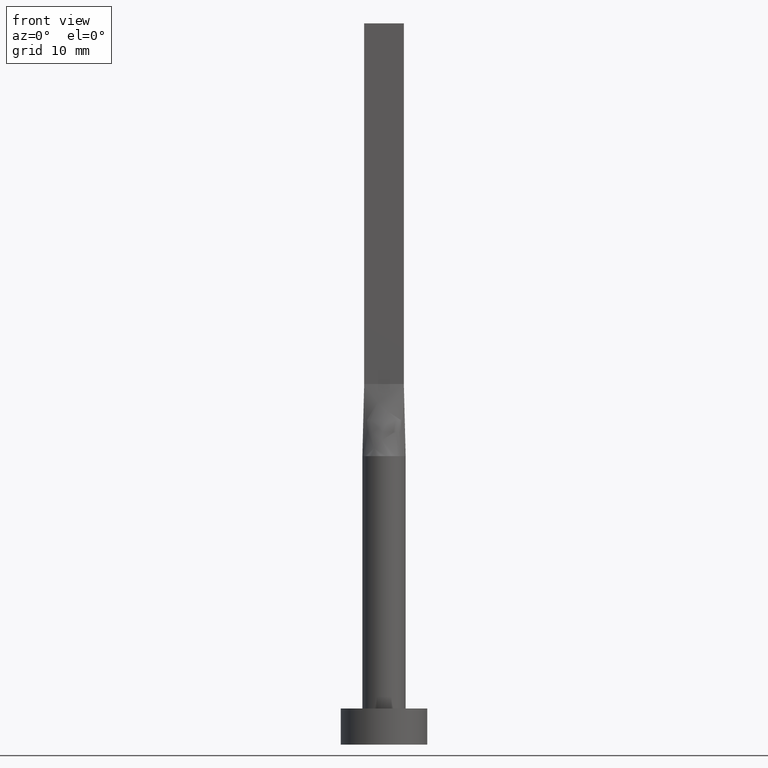
[diagram: clean part render]
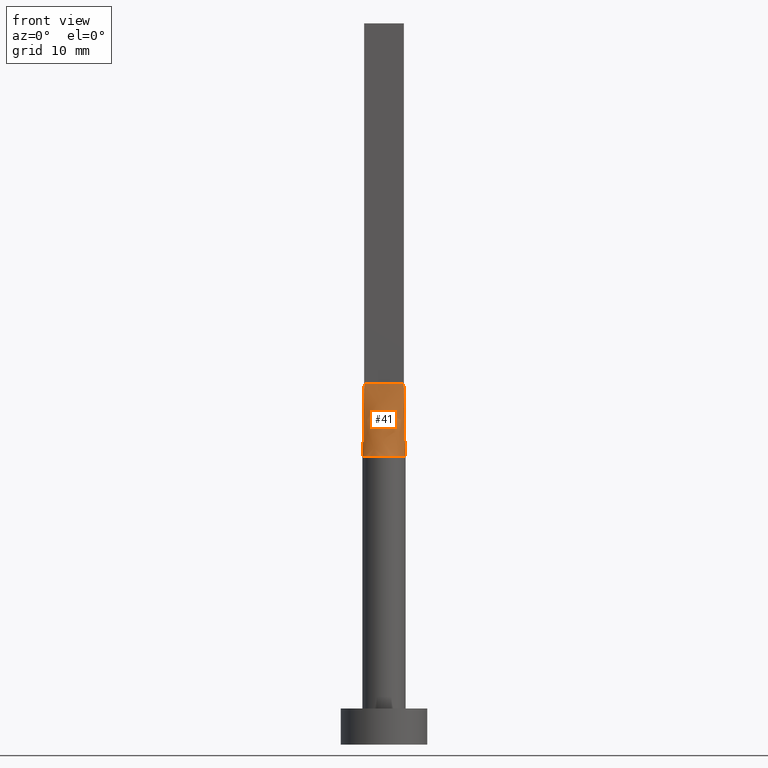
[diagram: same view with one face highlighted and labeled with its STEP entity id]
A machine part, front view. The second image highlights one B-rep face of the part: STEP entity #41.
In plain terms, the highlighted face is a freeform B-spline surface patch.
Its self-contained STEP definition (entity closure, byte-faithful):
#14 = CARTESIAN_POINT ( 'NONE',  ( 0.8041209001220684938, -2.916015559847872751, 40.00000000000000000 ) ) ;
#17 = CARTESIAN_POINT ( 'NONE',  ( 2.291666666666666519, -0.5999999999999996447, 50.00000000000000000 ) ) ;
#20 = CARTESIAN_POINT ( 'NONE',  ( -2.518011668798964653, -1.657305971825550062, 40.00000000000001421 ) ) ;
#24 = CARTESIAN_POINT ( 'NONE',  ( 2.518011668798964209, -1.657305971825550506, 40.00000000000001421 ) ) ;
#27 = CARTESIAN_POINT ( 'NONE',  ( -1.604166666666665408, -0.5999999999999994227, 50.00000000000000000 ) ) ;
#41 = ADVANCED_FACE ( 'NONE', ( #520 ), #570, .T. ) ;
#42 = ORIENTED_EDGE ( 'NONE', *, *, #275, .F. ) ;
#47 = CARTESIAN_POINT ( 'NONE',  ( -2.750000000000000000, -0.5999999999999994227, 50.00000000000000000 ) ) ;
#56 = LINE ( 'NONE', #232, #278 ) ;
#59 = EDGE_CURVE ( 'NONE', #314, #87, #380, .T. ) ;
#62 = CARTESIAN_POINT ( 'NONE',  ( 0.4583333333333337034, -0.5999999999999995337, 50.00000000000000000 ) ) ;
#64 = CIRCLE ( 'NONE', #164, 3.000000000000000444 ) ;
#68 = CARTESIAN_POINT ( 'NONE',  ( 2.931047284229977734, -0.6395012256501753090, 40.00000000000000000 ) ) ;
#79 = DIRECTION ( 'NONE',  ( 1.000000000000000000, 0.000000000000000000, 0.000000000000000000 ) ) ;
#87 = VERTEX_POINT ( 'NONE', #199 ) ;
#102 = EDGE_LOOP ( 'NONE', ( #414, #327, #42, #183 ) ) ;
#110 = CARTESIAN_POINT ( 'NONE',  ( -0.9166666666666656305, -0.5999999999999994227, 50.00000000000000000 ) ) ;
#112 = CARTESIAN_POINT ( 'NONE',  ( -2.291666666666665630, -0.5999999999999994227, 50.00000000000000000 ) ) ;
#119 = LINE ( 'NONE', #530, #510 ) ;
#120 = CARTESIAN_POINT ( 'NONE',  ( 0.000000000000000000, 0.000000000000000000, 40.00000000000000000 ) ) ;
#122 = DIRECTION ( 'NONE',  ( 0.000000000000000000, 0.000000000000000000, 1.000000000000000000 ) ) ;
#149 = CARTESIAN_POINT ( 'NONE',  ( 1.833333333333333481, -0.5999999999999996447, 50.00000000000000000 ) ) ;
#155 = CARTESIAN_POINT ( 'NONE',  ( 2.878980386154875060, -0.8781411751610634919, 40.00000000000000000 ) ) ;
#161 = CARTESIAN_POINT ( 'NONE',  ( 2.750000000000000000, -0.5999999999999997558, 50.00000000000000000 ) ) ;
#162 = VERTEX_POINT ( 'NONE', #447 ) ;
#164 = AXIS2_PLACEMENT_3D ( 'NONE', #120, #122, #79 ) ;
#183 = ORIENTED_EDGE ( 'NONE', *, *, #59, .T. ) ;
#190 = CARTESIAN_POINT ( 'NONE',  ( 0.2291666666666668517, -0.5999999999999995337, 50.00000000000000000 ) ) ;
#195 = DIRECTION ( 'NONE',  ( -0.01810162078030962129, -0.003949444533885649103, -0.9998283518749604415 ) ) ;
#197 = CARTESIAN_POINT ( 'NONE',  ( 1.829136458871248205, -2.402980488111650992, 40.00000000000000711 ) ) ;
#199 = CARTESIAN_POINT ( 'NONE',  ( -2.931315536094174057, -0.6395601373676296220, 40.00000000000000000 ) ) ;
#232 = CARTESIAN_POINT ( 'NONE',  ( 2.840523642114988867, -0.6197506128250874768, 45.00000000000000000 ) ) ;
#237 = CARTESIAN_POINT ( 'NONE',  ( -1.145833333333332149, -0.5999999999999994227, 50.00000000000000000 ) ) ;
#241 = CARTESIAN_POINT ( 'NONE',  ( 0.9166666666666669627, -0.5999999999999996447, 50.00000000000000000 ) ) ;
#244 = CARTESIAN_POINT ( 'NONE',  ( -2.792624347712116428, -1.135030881087314647, 40.00000000000000711 ) ) ;
#248 = CARTESIAN_POINT ( 'NONE',  ( -0.8041209001220698260, -2.916015559847872307, 40.00000000000000000 ) ) ;
#251 = CARTESIAN_POINT ( 'NONE',  ( -2.750000000000000000, -0.5999999999999994227, 50.00000000000000000 ) ) ;
#275 = EDGE_CURVE ( 'NONE', #314, #162, #119, .T. ) ;
#278 = VECTOR ( 'NONE', #509, 1000.000000000000000 ) ;
#286 = CARTESIAN_POINT ( 'NONE',  ( 2.931332910560268790, -0.6395638358681950963, 40.00000000000000000 ) ) ;
#287 = CARTESIAN_POINT ( 'NONE',  ( 2.520833333333333037, -0.5999999999999996447, 50.00000000000000000 ) ) ;
#292 = CARTESIAN_POINT ( 'NONE',  ( -0.4583333333333328152, -0.5999999999999994227, 50.00000000000000000 ) ) ;
#299 = DIRECTION ( 'NONE',  ( 1.000000000000000000, -5.913830031739115543E-17, 0.000000000000000000 ) ) ;
#314 = VERTEX_POINT ( 'NONE', #47 ) ;
#327 = ORIENTED_EDGE ( 'NONE', *, *, #386, .T. ) ;
#329 = CARTESIAN_POINT ( 'NONE',  ( 2.792624347712116872, -1.135030881087315757, 40.00000000000001421 ) ) ;
#331 = CARTESIAN_POINT ( 'NONE',  ( -1.833333333333332149, -0.5999999999999994227, 50.00000000000000000 ) ) ;
#339 = CARTESIAN_POINT ( 'NONE',  ( -0.2291666666666664076, -0.5999999999999995337, 50.00000000000000000 ) ) ;
#375 = CARTESIAN_POINT ( 'NONE',  ( 2.328745122427008152, -1.922758842442226390, 39.99999999999999289 ) ) ;
#380 = LINE ( 'NONE', #561, #412 ) ;
#382 = CARTESIAN_POINT ( 'NONE',  ( -2.328745122427009928, -1.922758842442225058, 39.99999999999997868 ) ) ;
#384 = CARTESIAN_POINT ( 'NONE',  ( 0.4026715616377293805, -3.000000000000001332, 40.00000000000000000 ) ) ;
#386 = EDGE_CURVE ( 'NONE', #495, #162, #56, .T. ) ;
#412 = VECTOR ( 'NONE', #195, 1000.000000000000000 ) ;
#414 = ORIENTED_EDGE ( 'NONE', *, *, #533, .T. ) ;
#420 = CARTESIAN_POINT ( 'NONE',  ( -0.4026715616377306572, -3.000000000000000000, 40.00000000000000000 ) ) ;
#424 = CARTESIAN_POINT ( 'NONE',  ( 1.145833333333333481, -0.5999999999999996447, 50.00000000000000000 ) ) ;
#434 = CARTESIAN_POINT ( 'NONE',  ( -2.878980386154874616, -0.8781411751610622707, 39.99999999999999289 ) ) ;
#447 = CARTESIAN_POINT ( 'NONE',  ( 2.750000000000000000, -0.5999999999999997558, 50.00000000000000000 ) ) ;
#465 = CARTESIAN_POINT ( 'NONE',  ( -2.520833333333333037, -0.5999999999999994227, 50.00000000000000000 ) ) ;
#467 = CARTESIAN_POINT ( 'NONE',  ( -2.931047284229977734, -0.6395012256501755310, 40.00000000000000000 ) ) ;
#495 = VERTEX_POINT ( 'NONE', #286 ) ;
#509 = DIRECTION ( 'NONE',  ( -0.01810162078030962129, 0.003949444533885595326, 0.9998283518749604415 ) ) ;
#510 = VECTOR ( 'NONE', #299, 1000.000000000000000 ) ;
#520 = FACE_OUTER_BOUND ( 'NONE', #102, .T. ) ;
#526 = CARTESIAN_POINT ( 'NONE',  ( -1.829136458871248427, -2.402980488111649660, 39.99999999999997158 ) ) ;
#530 = CARTESIAN_POINT ( 'NONE',  ( -2.750000000000000000, -0.5999999999999994227, 50.00000000000000000 ) ) ;
#533 = EDGE_CURVE ( 'NONE', #87, #495, #64, .T. ) ;
#557 = CARTESIAN_POINT ( 'NONE',  ( 1.604166666666666741, -0.5999999999999996447, 50.00000000000000000 ) ) ;
#559 = CARTESIAN_POINT ( 'NONE',  ( -1.517787371616672321, -2.616501225271827380, 39.99999999999998579 ) ) ;
#561 = CARTESIAN_POINT ( 'NONE',  ( -2.840523642114988867, -0.6197506128250873658, 45.00000000000000000 ) ) ;
#566 = CARTESIAN_POINT ( 'NONE',  ( 1.517787371616671876, -2.616501225271829156, 40.00000000000000711 ) ) ;
#570 = B_SPLINE_SURFACE_WITH_KNOTS ( 'NONE', 3, 1, ( 
 ( #467, #251 ),
 ( #434, #465 ),
 ( #244, #112 ),
 ( #20, #331 ),
 ( #382, #27 ),
 ( #526, #237 ),
 ( #559, #110 ),
 ( #248, #292 ),
 ( #420, #339 ),
 ( #384, #190 ),
 ( #14, #62 ),
 ( #566, #241 ),
 ( #197, #424 ),
 ( #375, #557 ),
 ( #24, #149 ),
 ( #329, #17 ),
 ( #155, #287 ),
 ( #68, #161 ) ),
 .UNSPECIFIED., .F., .F., .F.,
 ( 4, 2, 2, 2, 2, 2, 2, 2, 4 ),
 ( 2, 2 ),
 ( 0.000000000000000000, 0.1250000000000000833, 0.2500000000000001665, 0.3750000000000001110, 0.5000000000000001110, 0.6250000000000001110, 0.7500000000000000000, 0.8750000000000000000, 1.000000000000000000 ),
 ( 0.000000000000000000, 1.000000000000000000 ),
 .UNSPECIFIED. ) ;